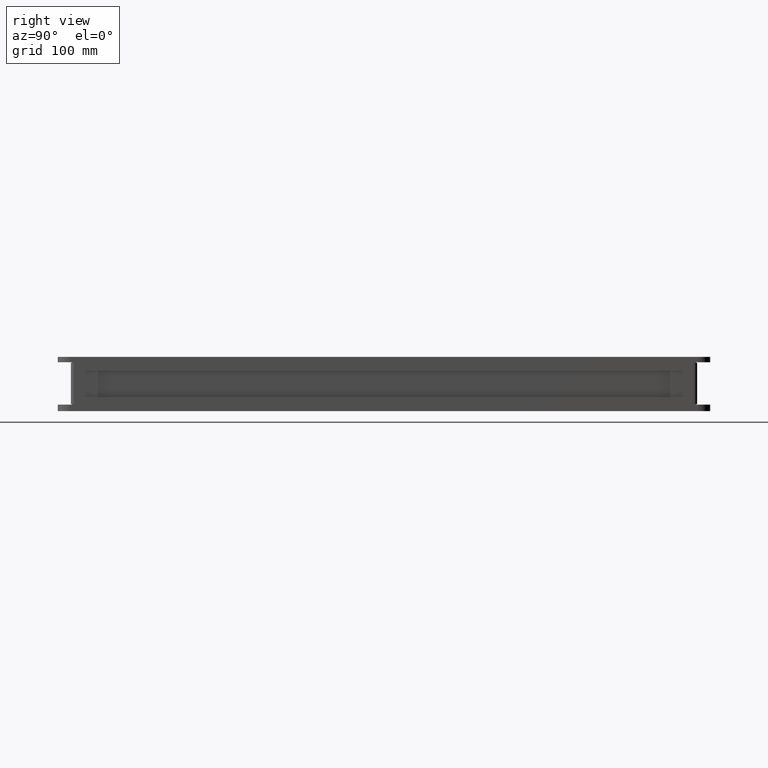
[diagram: clean part render]
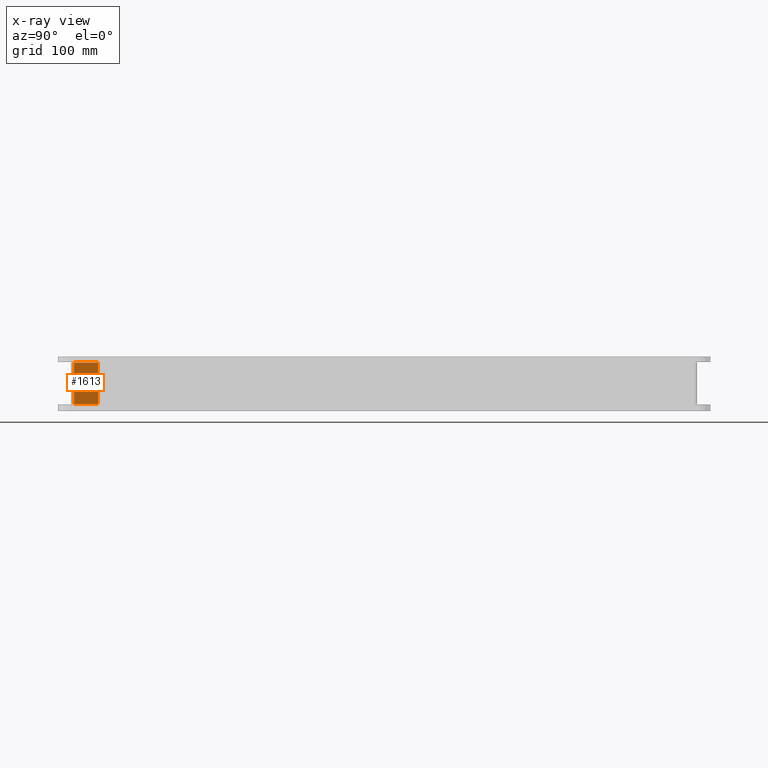
[diagram: x-ray — body ghosted, one internal face saturated and labeled with its STEP entity id]
A machine part, right view, then the same camera in x-ray: the body is ghosted and one INTERNAL B-rep face — a face not visible from any outside direction — is saturated and labeled: STEP entity #1613.
In plain terms, the highlighted planar face has unit normal (-1, 0, -0).
Its self-contained STEP definition (entity closure, byte-faithful):
#745 = ORIENTED_EDGE ( 'NONE', *, *, #10625, .F. ) ;
#1430 = EDGE_CURVE ( 'NONE', #16963, #5572, #6651, .T. ) ;
#1613 = ADVANCED_FACE ( 'NONE', ( #13198 ), #14688, .F. ) ;
#2491 = CARTESIAN_POINT ( 'NONE',  ( 115.6333857621497714, -254.0308025497473068, -355.5013852687678764 ) ) ;
#3224 = VECTOR ( 'NONE', #11311, 1000.000000000000000 ) ;
#3344 = VECTOR ( 'NONE', #18083, 1000.000000000000000 ) ;
#4379 = DIRECTION ( 'NONE',  ( -1.000000000000000000, 1.857556248734237020E-16, -2.670884459509479522E-33 ) ) ;
#4492 = CARTESIAN_POINT ( 'NONE',  ( 115.6333857621497714, -254.0308025497473068, -355.5013852687678764 ) ) ;
#4570 = DIRECTION ( 'NONE',  ( -1.857556248734237020E-16, -1.000000000000000000, -7.703719777548946833E-34 ) ) ;
#5572 = VERTEX_POINT ( 'NONE', #8778 ) ;
#5721 = ORIENTED_EDGE ( 'NONE', *, *, #18182, .T. ) ;
#6651 = LINE ( 'NONE', #2491, #3224 ) ;
#6912 = EDGE_LOOP ( 'NONE', ( #5721, #745, #11673, #13110 ) ) ;
#7179 = LINE ( 'NONE', #16395, #15230 ) ;
#7200 = CARTESIAN_POINT ( 'NONE',  ( 115.6333857621495440, -276.0308025497472499, -355.5013852687678764 ) ) ;
#7383 = DIRECTION ( 'NONE',  ( 2.670884459509479522E-33, 7.703719777548941702E-34, -1.000000000000000000 ) ) ;
#8778 = CARTESIAN_POINT ( 'NONE',  ( 115.6333857621497714, -254.0308025497473068, -393.5013852687679332 ) ) ;
#10264 = EDGE_CURVE ( 'NONE', #18324, #16963, #17697, .T. ) ;
#10515 = AXIS2_PLACEMENT_3D ( 'NONE', #15077, #4379, #11705 ) ;
#10625 = EDGE_CURVE ( 'NONE', #5572, #12903, #16467, .T. ) ;
#11275 = VECTOR ( 'NONE', #4570, 1000.000000000000000 ) ;
#11311 = DIRECTION ( 'NONE',  ( 2.670884459509479522E-33, 7.703719777548941702E-34, -1.000000000000000000 ) ) ;
#11673 = ORIENTED_EDGE ( 'NONE', *, *, #1430, .F. ) ;
#11705 = DIRECTION ( 'NONE',  ( 1.857556248734237020E-16, 1.000000000000000000, 7.703719777548946833E-34 ) ) ;
#12344 = CARTESIAN_POINT ( 'NONE',  ( 115.6333857621495440, -276.0308025497472499, -393.5013852687679332 ) ) ;
#12903 = VERTEX_POINT ( 'NONE', #12344 ) ;
#13110 = ORIENTED_EDGE ( 'NONE', *, *, #10264, .F. ) ;
#13198 = FACE_OUTER_BOUND ( 'NONE', #6912, .T. ) ;
#14688 = PLANE ( 'NONE',  #10515 ) ;
#15077 = CARTESIAN_POINT ( 'NONE',  ( 115.6333857621495440, -276.0308025497472499, -355.5013852687678764 ) ) ;
#15230 = VECTOR ( 'NONE', #7383, 1000.000000000000000 ) ;
#15485 = CARTESIAN_POINT ( 'NONE',  ( 115.6333857621495440, -276.0308025497472499, -355.5013852687678764 ) ) ;
#16395 = CARTESIAN_POINT ( 'NONE',  ( 115.6333857621495440, -276.0308025497472499, -355.5013852687678764 ) ) ;
#16467 = LINE ( 'NONE', #16652, #11275 ) ;
#16652 = CARTESIAN_POINT ( 'NONE',  ( 115.6333857621495440, -276.0308025497472499, -393.5013852687679332 ) ) ;
#16963 = VERTEX_POINT ( 'NONE', #4492 ) ;
#17697 = LINE ( 'NONE', #7200, #3344 ) ;
#18083 = DIRECTION ( 'NONE',  ( 1.857556248734237020E-16, 1.000000000000000000, 7.703719777548946833E-34 ) ) ;
#18182 = EDGE_CURVE ( 'NONE', #18324, #12903, #7179, .T. ) ;
#18324 = VERTEX_POINT ( 'NONE', #15485 ) ;